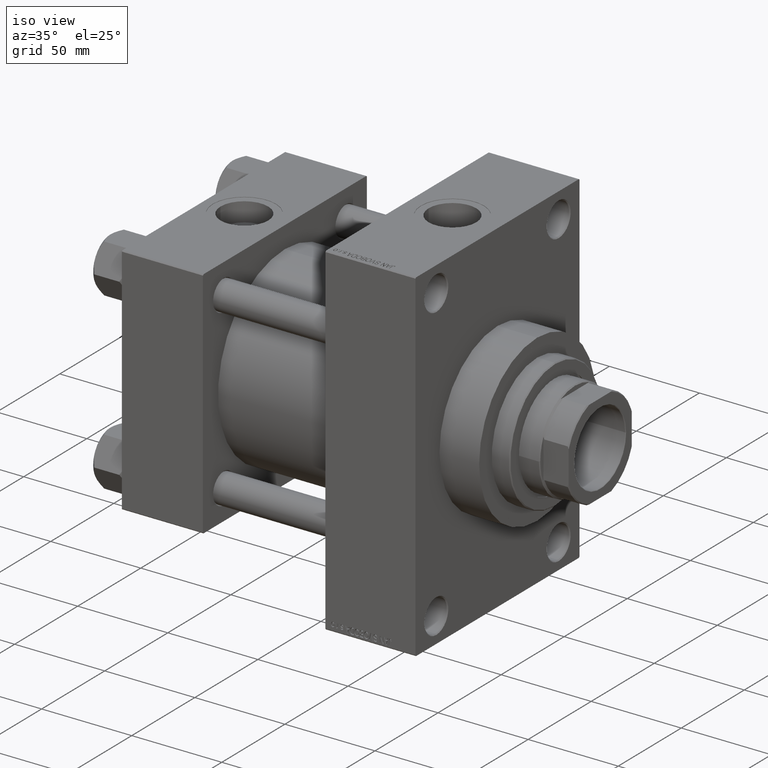
[diagram: clean part render]
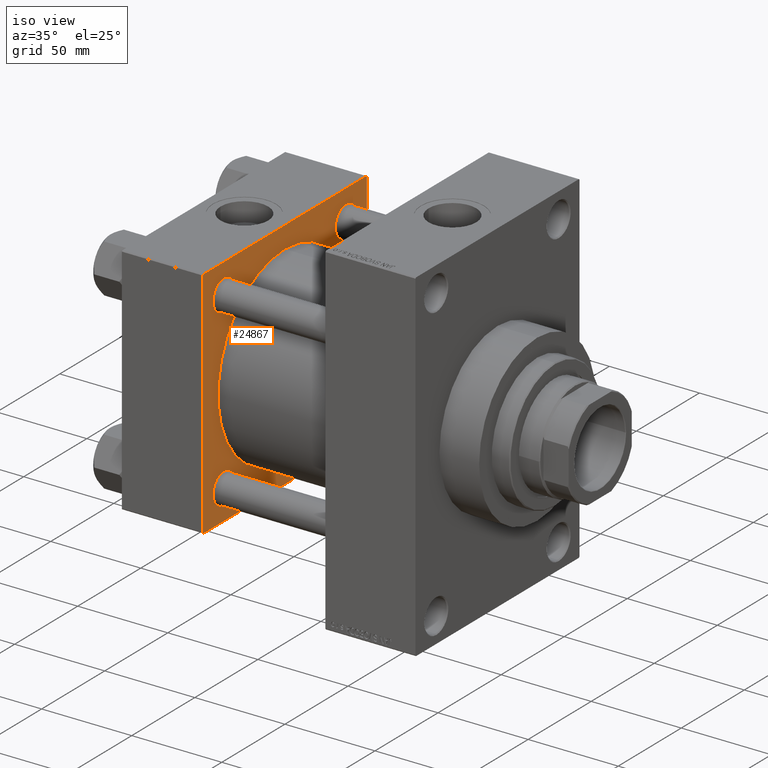
[diagram: same view with one face highlighted and labeled with its STEP entity id]
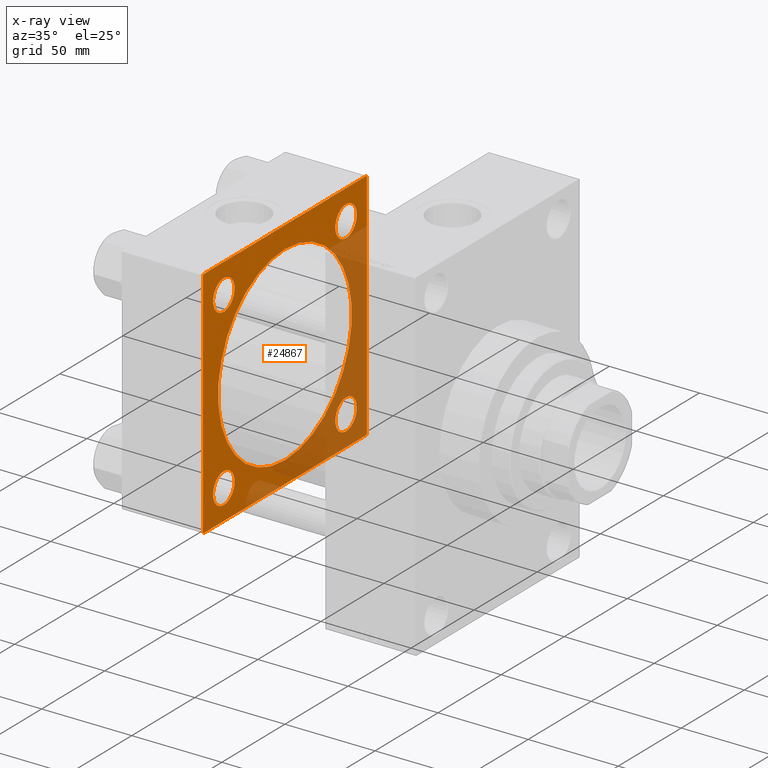
[diagram: x-ray of the same camera — body ghosted, the highlighted face saturated]
A machine part, iso view. The second image highlights one B-rep face of the part: STEP entity #24867.
The next image is the same camera in x-ray: the body ghosted, the highlighted face saturated — about 38% of this face is hidden behind the body in this view.
In plain terms, the highlighted planar face has unit normal (-1, 0, 0).
Its self-contained STEP definition (entity closure, byte-faithful):
#204 = AXIS2_PLACEMENT_3D ( 'NONE', #2459, #20335, #24200 ) ;
#436 = DIRECTION ( 'NONE',  ( 0.000000000000000000, 0.000000000000000000, 1.000000000000000000 ) ) ;
#772 = VERTEX_POINT ( 'NONE', #2152 ) ;
#958 = AXIS2_PLACEMENT_3D ( 'NONE', #26543, #29926, #3603 ) ;
#1007 = EDGE_LOOP ( 'NONE', ( #24336, #45778 ) ) ;
#1092 = EDGE_CURVE ( 'NONE', #772, #17100, #20217, .T. ) ;
#2152 = CARTESIAN_POINT ( 'NONE',  ( 45.00000000000000000, 64.49999999999997158, 65.00000000000001421 ) ) ;
#2459 = CARTESIAN_POINT ( 'NONE',  ( 45.00000000000000000, -48.44999999999999574, 48.45000000000003126 ) ) ;
#2840 = EDGE_LOOP ( 'NONE', ( #10269, #30863 ) ) ;
#2971 = CARTESIAN_POINT ( 'NONE',  ( 45.00000000000000000, -48.44999999999999574, -48.45000000000003126 ) ) ;
#3112 = DIRECTION ( 'NONE',  ( -0.000000000000000000, -0.7071067811865672237, -0.7071067811865279218 ) ) ;
#3305 = CIRCLE ( 'NONE', #204, 8.500000000000007105 ) ;
#3603 = DIRECTION ( 'NONE',  ( -0.000000000000000000, 0.000000000000000000, 1.000000000000000000 ) ) ;
#3785 = AXIS2_PLACEMENT_3D ( 'NONE', #26995, #16358, #45329 ) ;
#4682 = VERTEX_POINT ( 'NONE', #45791 ) ;
#5088 = ORIENTED_EDGE ( 'NONE', *, *, #26316, .T. ) ;
#5867 = ORIENTED_EDGE ( 'NONE', *, *, #42697, .T. ) ;
#6029 = AXIS2_PLACEMENT_3D ( 'NONE', #30715, #34815, #45432 ) ;
#6514 = LINE ( 'NONE', #28957, #19778 ) ;
#7498 = DIRECTION ( 'NONE',  ( -1.000000000000000000, 0.000000000000000000, -0.000000000000000000 ) ) ;
#7610 = CIRCLE ( 'NONE', #34601, 8.500000000000007105 ) ;
#7715 = FACE_BOUND ( 'NONE', #22392, .T. ) ;
#7796 = DIRECTION ( 'NONE',  ( 0.000000000000000000, 0.000000000000000000, 1.000000000000000000 ) ) ;
#7853 = CARTESIAN_POINT ( 'NONE',  ( 45.00000000000000000, -48.44999999999999574, 39.95000000000001705 ) ) ;
#8178 = CIRCLE ( 'NONE', #28198, 53.00000000000000711 ) ;
#8473 = DIRECTION ( 'NONE',  ( -1.000000000000000000, 0.000000000000000000, -0.000000000000000000 ) ) ;
#8480 = VECTOR ( 'NONE', #35683, 1000.000000000000114 ) ;
#9440 = LINE ( 'NONE', #35757, #25347 ) ;
#10260 = ORIENTED_EDGE ( 'NONE', *, *, #23613, .T. ) ;
#10269 = ORIENTED_EDGE ( 'NONE', *, *, #18760, .T. ) ;
#10866 = CIRCLE ( 'NONE', #31679, 8.500000000000007105 ) ;
#10915 = ORIENTED_EDGE ( 'NONE', *, *, #33480, .T. ) ;
#11205 = CARTESIAN_POINT ( 'NONE',  ( 45.00000000000000000, 65.00000000000000000, -64.49999999999995737 ) ) ;
#11414 = CARTESIAN_POINT ( 'NONE',  ( 45.00000000000000000, 65.00000000000000000, 64.49999999999998579 ) ) ;
#11821 = PLANE ( 'NONE',  #958 ) ;
#11917 = EDGE_CURVE ( 'NONE', #34204, #17504, #9440, .T. ) ;
#12728 = DIRECTION ( 'NONE',  ( 0.000000000000000000, -1.000000000000000000, -1.067522139062650425E-16 ) ) ;
#13826 = VERTEX_POINT ( 'NONE', #11414 ) ;
#13951 = CARTESIAN_POINT ( 'NONE',  ( 45.00000000000000000, 3.888542821515762466E-15, -53.00000000000000711 ) ) ;
#14020 = DIRECTION ( 'NONE',  ( 0.000000000000000000, 0.000000000000000000, -1.000000000000000000 ) ) ;
#14707 = CARTESIAN_POINT ( 'NONE',  ( 45.00000000000000000, -65.00000000000000000, 64.50000000000000000 ) ) ;
#14993 = DIRECTION ( 'NONE',  ( 0.000000000000000000, 0.000000000000000000, 1.000000000000000000 ) ) ;
#15194 = FACE_BOUND ( 'NONE', #2840, .T. ) ;
#15302 = DIRECTION ( 'NONE',  ( -0.000000000000000000, 0.7071067811865474617, 0.7071067811865474617 ) ) ;
#15353 = CARTESIAN_POINT ( 'NONE',  ( 45.00000000000000000, -48.44999999999999574, -56.95000000000003837 ) ) ;
#15426 = ORIENTED_EDGE ( 'NONE', *, *, #41585, .T. ) ;
#15442 = FACE_BOUND ( 'NONE', #1007, .T. ) ;
#15643 = CARTESIAN_POINT ( 'NONE',  ( 45.00000000000000000, 48.45000000000000995, 39.95000000000000284 ) ) ;
#16358 = DIRECTION ( 'NONE',  ( 1.000000000000000000, -0.000000000000000000, 0.000000000000000000 ) ) ;
#16378 = EDGE_CURVE ( 'NONE', #27969, #39380, #26234, .T. ) ;
#16537 = CARTESIAN_POINT ( 'NONE',  ( 45.00000000000000000, -64.49999999999994316, -65.00000000000000000 ) ) ;
#17059 = CIRCLE ( 'NONE', #23989, 8.500000000000007105 ) ;
#17100 = VERTEX_POINT ( 'NONE', #31360 ) ;
#17152 = VERTEX_POINT ( 'NONE', #15643 ) ;
#17199 = VECTOR ( 'NONE', #3112, 1000.000000000000000 ) ;
#17474 = DIRECTION ( 'NONE',  ( -1.000000000000000000, 0.000000000000000000, -0.000000000000000000 ) ) ;
#17504 = VERTEX_POINT ( 'NONE', #32970 ) ;
#17791 = EDGE_CURVE ( 'NONE', #32609, #4682, #10866, .T. ) ;
#17980 = EDGE_CURVE ( 'NONE', #34862, #17152, #17059, .T. ) ;
#18760 = EDGE_CURVE ( 'NONE', #17152, #34862, #36379, .T. ) ;
#19348 = ORIENTED_EDGE ( 'NONE', *, *, #16378, .T. ) ;
#19764 = CARTESIAN_POINT ( 'NONE',  ( 45.00000000000000000, 48.45000000000000995, 56.95000000000002416 ) ) ;
#19778 = VECTOR ( 'NONE', #25340, 1000.000000000000000 ) ;
#19977 = CARTESIAN_POINT ( 'NONE',  ( 45.00000000000000000, 65.00000000000000000, 65.00000000000001421 ) ) ;
#20073 = CARTESIAN_POINT ( 'NONE',  ( 45.00000000000000000, 64.49999999999997158, -64.99999999999998579 ) ) ;
#20217 = LINE ( 'NONE', #19977, #25355 ) ;
#20335 = DIRECTION ( 'NONE',  ( -1.000000000000000000, 0.000000000000000000, -0.000000000000000000 ) ) ;
#20530 = ORIENTED_EDGE ( 'NONE', *, *, #24616, .F. ) ;
#21082 = ORIENTED_EDGE ( 'NONE', *, *, #22837, .T. ) ;
#21332 = DIRECTION ( 'NONE',  ( 0.000000000000000000, 0.000000000000000000, 1.000000000000000000 ) ) ;
#21723 = CIRCLE ( 'NONE', #28642, 8.500000000000007105 ) ;
#21966 = FACE_OUTER_BOUND ( 'NONE', #31335, .T. ) ;
#22203 = FACE_BOUND ( 'NONE', #30812, .T. ) ;
#22376 = ORIENTED_EDGE ( 'NONE', *, *, #17791, .T. ) ;
#22392 = EDGE_LOOP ( 'NONE', ( #19348, #21082 ) ) ;
#22501 = LINE ( 'NONE', #29741, #44904 ) ;
#22630 = CARTESIAN_POINT ( 'NONE',  ( 45.00000000000000000, -2.602085213965210642E-15, 53.00000000000000711 ) ) ;
#22837 = EDGE_CURVE ( 'NONE', #39380, #27969, #21723, .T. ) ;
#23613 = EDGE_CURVE ( 'NONE', #45645, #37762, #29322, .T. ) ;
#23989 = AXIS2_PLACEMENT_3D ( 'NONE', #33625, #32676, #7796 ) ;
#24200 = DIRECTION ( 'NONE',  ( 0.000000000000000000, 0.000000000000000000, 1.000000000000000000 ) ) ;
#24336 = ORIENTED_EDGE ( 'NONE', *, *, #42999, .F. ) ;
#24503 = DIRECTION ( 'NONE',  ( 1.000000000000000000, -0.000000000000000000, 0.000000000000000000 ) ) ;
#24616 = EDGE_CURVE ( 'NONE', #45645, #26839, #22501, .T. ) ;
#24622 = LINE ( 'NONE', #14707, #17199 ) ;
#24867 = ADVANCED_FACE ( 'NONE', ( #22203, #7715, #33549, #15194, #15442, #21966 ), #11821, .F. ) ;
#25187 = DIRECTION ( 'NONE',  ( -1.000000000000000000, 0.000000000000000000, -0.000000000000000000 ) ) ;
#25340 = DIRECTION ( 'NONE',  ( 0.000000000000000000, 0.7071067811865279218, -0.7071067811865671127 ) ) ;
#25347 = VECTOR ( 'NONE', #14020, 1000.000000000000000 ) ;
#25355 = VECTOR ( 'NONE', #12728, 1000.000000000000000 ) ;
#25645 = CARTESIAN_POINT ( 'NONE',  ( 45.00000000000000000, 48.45000000000000995, -39.95000000000000284 ) ) ;
#25855 = CARTESIAN_POINT ( 'NONE',  ( 45.00000000000000000, -48.44999999999999574, 48.45000000000003126 ) ) ;
#25917 = EDGE_CURVE ( 'NONE', #37894, #37189, #3305, .T. ) ;
#26234 = CIRCLE ( 'NONE', #27784, 8.500000000000007105 ) ;
#26316 = EDGE_CURVE ( 'NONE', #17100, #34204, #24622, .T. ) ;
#26543 = CARTESIAN_POINT ( 'NONE',  ( 45.00000000000000000, 0.000000000000000000, 0.000000000000000000 ) ) ;
#26839 = VERTEX_POINT ( 'NONE', #16537 ) ;
#26995 = CARTESIAN_POINT ( 'NONE',  ( 45.00000000000000000, -2.602085213965210642E-15, 0.000000000000000000 ) ) ;
#27371 = DIRECTION ( 'NONE',  ( 0.000000000000000000, 0.000000000000000000, -1.000000000000000000 ) ) ;
#27784 = AXIS2_PLACEMENT_3D ( 'NONE', #29670, #44378, #436 ) ;
#27901 = CARTESIAN_POINT ( 'NONE',  ( 45.00000000000000000, -2.602085213965210642E-15, 0.000000000000000000 ) ) ;
#27969 = VERTEX_POINT ( 'NONE', #28762 ) ;
#28198 = AXIS2_PLACEMENT_3D ( 'NONE', #27901, #24503, #45983 ) ;
#28425 = CARTESIAN_POINT ( 'NONE',  ( 45.00000000000000000, 64.49999999999997158, 65.00000000000001421 ) ) ;
#28562 = ORIENTED_EDGE ( 'NONE', *, *, #44017, .T. ) ;
#28642 = AXIS2_PLACEMENT_3D ( 'NONE', #34310, #8473, #37942 ) ;
#28762 = CARTESIAN_POINT ( 'NONE',  ( 45.00000000000000000, 48.45000000000000995, -56.95000000000002416 ) ) ;
#28957 = CARTESIAN_POINT ( 'NONE',  ( 45.00000000000000000, -64.49999999999994316, -65.00000000000000000 ) ) ;
#29322 = LINE ( 'NONE', #11205, #44873 ) ;
#29670 = CARTESIAN_POINT ( 'NONE',  ( 45.00000000000000000, 48.45000000000000995, -48.45000000000001705 ) ) ;
#29741 = CARTESIAN_POINT ( 'NONE',  ( 45.00000000000000000, 65.00000000000000000, -64.99999999999998579 ) ) ;
#29926 = DIRECTION ( 'NONE',  ( -1.000000000000000000, 0.000000000000000000, -0.000000000000000000 ) ) ;
#30023 = CIRCLE ( 'NONE', #3785, 53.00000000000000711 ) ;
#30283 = ORIENTED_EDGE ( 'NONE', *, *, #35734, .F. ) ;
#30606 = CARTESIAN_POINT ( 'NONE',  ( 45.00000000000000000, -48.44999999999999574, 56.95000000000003837 ) ) ;
#30715 = CARTESIAN_POINT ( 'NONE',  ( 45.00000000000000000, -48.44999999999999574, -48.45000000000003126 ) ) ;
#30812 = EDGE_LOOP ( 'NONE', ( #22376, #15426 ) ) ;
#30863 = ORIENTED_EDGE ( 'NONE', *, *, #17980, .T. ) ;
#31105 = EDGE_CURVE ( 'NONE', #44748, #35144, #8178, .T. ) ;
#31335 = EDGE_LOOP ( 'NONE', ( #20530, #10260, #30283, #28562, #43628, #5088, #46198, #10915 ) ) ;
#31360 = CARTESIAN_POINT ( 'NONE',  ( 45.00000000000000000, -64.49999999999997158, 65.00000000000000000 ) ) ;
#31433 = VECTOR ( 'NONE', #27371, 1000.000000000000000 ) ;
#31679 = AXIS2_PLACEMENT_3D ( 'NONE', #2971, #25187, #21332 ) ;
#32447 = CARTESIAN_POINT ( 'NONE',  ( 45.00000000000000000, 48.45000000000000995, 48.45000000000001705 ) ) ;
#32609 = VERTEX_POINT ( 'NONE', #15353 ) ;
#32676 = DIRECTION ( 'NONE',  ( -1.000000000000000000, 0.000000000000000000, -0.000000000000000000 ) ) ;
#32970 = CARTESIAN_POINT ( 'NONE',  ( 45.00000000000000000, -65.00000000000000000, -64.49999999999991473 ) ) ;
#33480 = EDGE_CURVE ( 'NONE', #17504, #26839, #6514, .T. ) ;
#33549 = FACE_BOUND ( 'NONE', #45110, .T. ) ;
#33625 = CARTESIAN_POINT ( 'NONE',  ( 45.00000000000000000, 48.45000000000000995, 48.45000000000001705 ) ) ;
#34204 = VERTEX_POINT ( 'NONE', #36421 ) ;
#34310 = CARTESIAN_POINT ( 'NONE',  ( 45.00000000000000000, 48.45000000000000995, -48.45000000000001705 ) ) ;
#34601 = AXIS2_PLACEMENT_3D ( 'NONE', #25855, #7498, #14993 ) ;
#34815 = DIRECTION ( 'NONE',  ( -1.000000000000000000, 0.000000000000000000, -0.000000000000000000 ) ) ;
#34862 = VERTEX_POINT ( 'NONE', #19764 ) ;
#35144 = VERTEX_POINT ( 'NONE', #22630 ) ;
#35683 = DIRECTION ( 'NONE',  ( 0.000000000000000000, -0.7071067811865474617, 0.7071067811865474617 ) ) ;
#35734 = EDGE_CURVE ( 'NONE', #13826, #37762, #46201, .T. ) ;
#35757 = CARTESIAN_POINT ( 'NONE',  ( 45.00000000000000000, -65.00000000000000000, 65.00000000000000000 ) ) ;
#36379 = CIRCLE ( 'NONE', #38683, 8.500000000000007105 ) ;
#36421 = CARTESIAN_POINT ( 'NONE',  ( 45.00000000000000000, -65.00000000000000000, 64.50000000000000000 ) ) ;
#36672 = CARTESIAN_POINT ( 'NONE',  ( 45.00000000000000000, 65.00000000000000000, -64.49999999999995737 ) ) ;
#37189 = VERTEX_POINT ( 'NONE', #7853 ) ;
#37714 = DIRECTION ( 'NONE',  ( 0.000000000000000000, -1.000000000000000000, -1.067522139062650425E-16 ) ) ;
#37762 = VERTEX_POINT ( 'NONE', #36672 ) ;
#37894 = VERTEX_POINT ( 'NONE', #30606 ) ;
#37942 = DIRECTION ( 'NONE',  ( 0.000000000000000000, 0.000000000000000000, 1.000000000000000000 ) ) ;
#38683 = AXIS2_PLACEMENT_3D ( 'NONE', #32447, #17474, #39474 ) ;
#39199 = CIRCLE ( 'NONE', #6029, 8.500000000000007105 ) ;
#39380 = VERTEX_POINT ( 'NONE', #25645 ) ;
#39474 = DIRECTION ( 'NONE',  ( 0.000000000000000000, 0.000000000000000000, 1.000000000000000000 ) ) ;
#41206 = ORIENTED_EDGE ( 'NONE', *, *, #25917, .T. ) ;
#41585 = EDGE_CURVE ( 'NONE', #4682, #32609, #39199, .T. ) ;
#42697 = EDGE_CURVE ( 'NONE', #37189, #37894, #7610, .T. ) ;
#42999 = EDGE_CURVE ( 'NONE', #35144, #44748, #30023, .T. ) ;
#43628 = ORIENTED_EDGE ( 'NONE', *, *, #1092, .T. ) ;
#44017 = EDGE_CURVE ( 'NONE', #13826, #772, #47002, .T. ) ;
#44378 = DIRECTION ( 'NONE',  ( -1.000000000000000000, 0.000000000000000000, -0.000000000000000000 ) ) ;
#44748 = VERTEX_POINT ( 'NONE', #13951 ) ;
#44873 = VECTOR ( 'NONE', #15302, 1000.000000000000114 ) ;
#44904 = VECTOR ( 'NONE', #37714, 1000.000000000000000 ) ;
#45110 = EDGE_LOOP ( 'NONE', ( #5867, #41206 ) ) ;
#45329 = DIRECTION ( 'NONE',  ( 0.000000000000000000, 0.000000000000000000, 1.000000000000000000 ) ) ;
#45432 = DIRECTION ( 'NONE',  ( 0.000000000000000000, 0.000000000000000000, 1.000000000000000000 ) ) ;
#45645 = VERTEX_POINT ( 'NONE', #20073 ) ;
#45778 = ORIENTED_EDGE ( 'NONE', *, *, #31105, .F. ) ;
#45791 = CARTESIAN_POINT ( 'NONE',  ( 45.00000000000000000, -48.44999999999999574, -39.95000000000001705 ) ) ;
#45983 = DIRECTION ( 'NONE',  ( 0.000000000000000000, 0.000000000000000000, 1.000000000000000000 ) ) ;
#46198 = ORIENTED_EDGE ( 'NONE', *, *, #11917, .T. ) ;
#46201 = LINE ( 'NONE', #46671, #31433 ) ;
#46671 = CARTESIAN_POINT ( 'NONE',  ( 45.00000000000000000, 65.00000000000000000, 65.00000000000001421 ) ) ;
#47002 = LINE ( 'NONE', #28425, #8480 ) ;